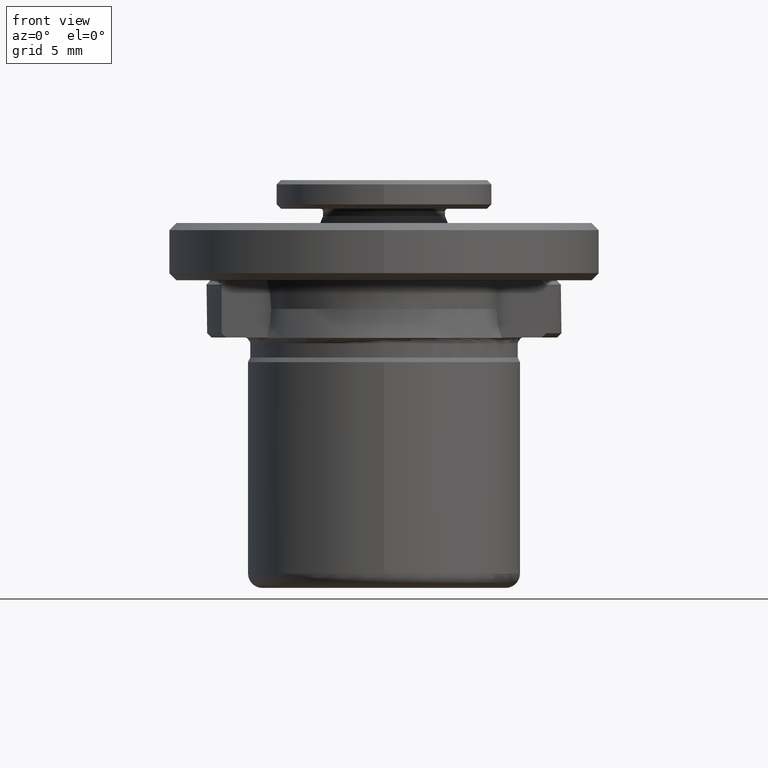
[diagram: clean part render]
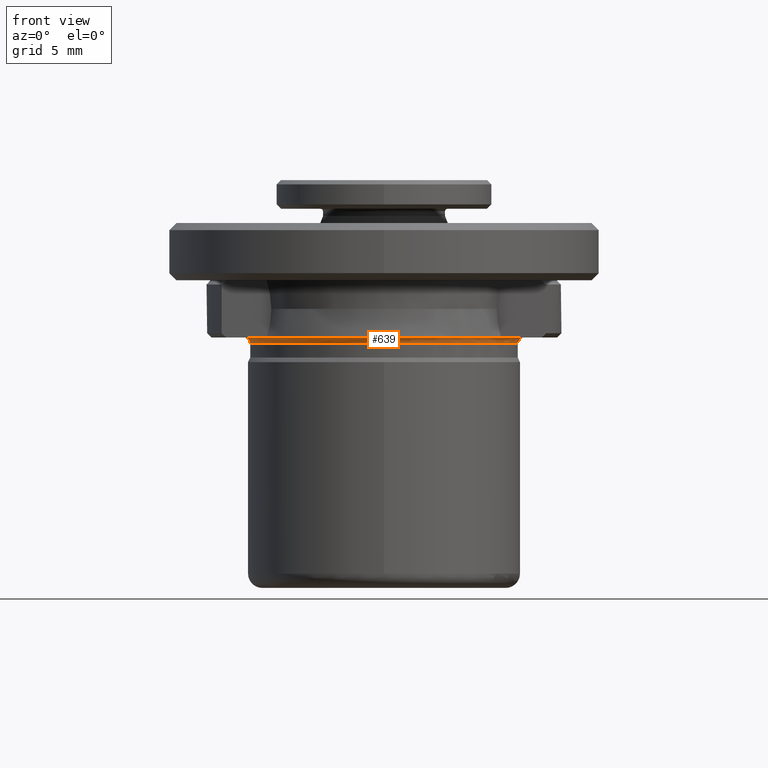
[diagram: same view with one face highlighted and labeled with its STEP entity id]
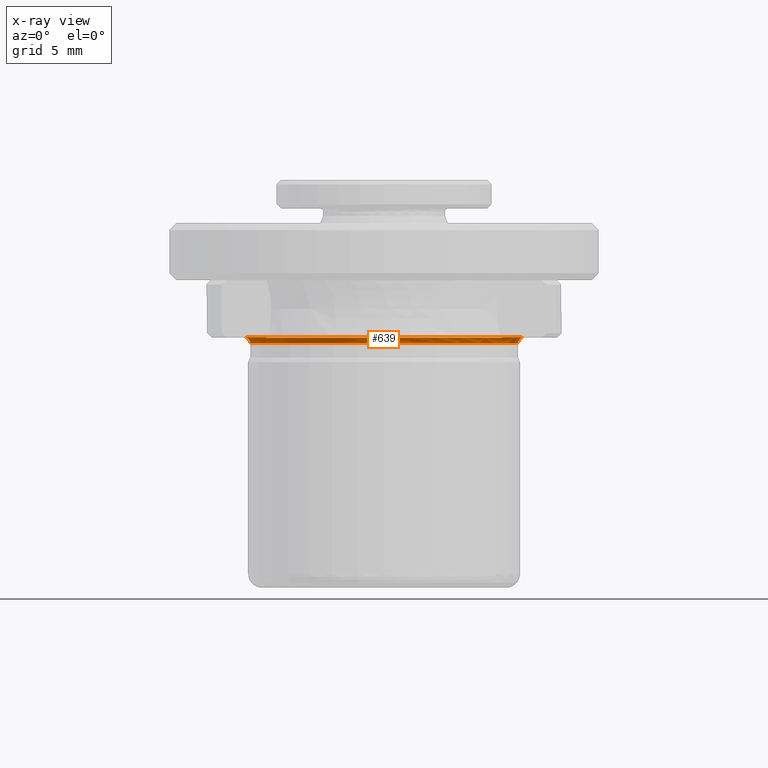
[diagram: x-ray of the same camera — body ghosted, the highlighted face saturated]
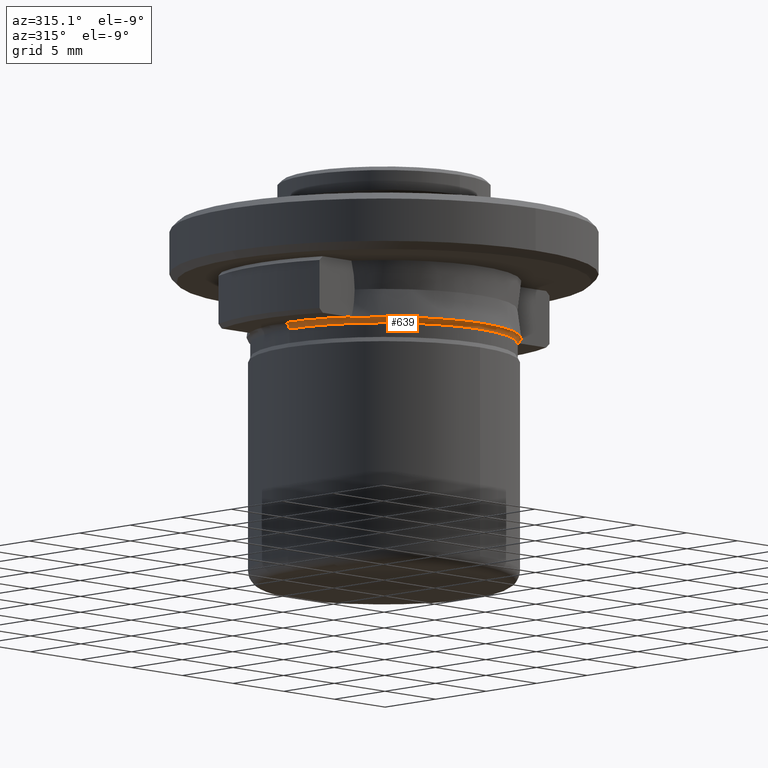
[diagram: same view with one face highlighted and labeled with its STEP entity id]
A machine part, front view. The second image highlights one B-rep face of the part: STEP entity #639.
The next image is the same camera in x-ray: the body ghosted, the highlighted face saturated — about 0% of this face is hidden behind the body in this view.
A second angle (auxiliary view) of the same face is appended — the face is thin or edge-on in the first view.
In plain terms, the highlighted toroidal blend (fillet) surface has major radius 9.75 mm and minor (blend) radius 0.4 mm.
Its self-contained STEP definition (entity closure, byte-faithful):
#5 = CARTESIAN_POINT ( 'NONE',  ( 9.350000000108330800, 0.0000000000000000000, 4.349999999879580400 ) ) ;
#7 = VERTEX_POINT ( 'NONE', #346 ) ;
#13 = AXIS2_PLACEMENT_3D ( 'NONE', #1073, #99, #1237 ) ;
#61 = DIRECTION ( 'NONE',  ( -1.000000000000000000, 0.0000000000000000000, 0.0000000000000000000 ) ) ;
#82 = ORIENTED_EDGE ( 'NONE', *, *, #463, .F. ) ;
#99 = DIRECTION ( 'NONE',  ( -0.0000000000000000000, 1.231706655199673800E-016, -1.000000000000000000 ) ) ;
#133 = CIRCLE ( 'NONE', #1562, 9.750000000796468700 ) ;
#141 = CIRCLE ( 'NONE', #648, 9.350000000108330800 ) ;
#144 = CARTESIAN_POINT ( 'NONE',  ( 8.259008783759654200, -5.000000000000000000, 4.741517755018747900 ) ) ;
#189 = VERTEX_POINT ( 'NONE', #746 ) ;
#191 = ORIENTED_EDGE ( 'NONE', *, *, #2091, .F. ) ;
#195 = AXIS2_PLACEMENT_3D ( 'NONE', #1210, #1035, #1369 ) ;
#210 = CARTESIAN_POINT ( 'NONE',  ( 8.205382973924143300, -5.000000000000000900, 4.724235040594156700 ) ) ;
#232 = EDGE_CURVE ( 'NONE', #189, #1373, #1013, .T. ) ;
#346 = CARTESIAN_POINT ( 'NONE',  ( -9.350000000108330800, 1.145044757216041900E-015, 4.349999999879580400 ) ) ;
#369 = VERTEX_POINT ( 'NONE', #5 ) ;
#463 = EDGE_CURVE ( 'NONE', #1812, #369, #947, .T. ) ;
#469 = CARTESIAN_POINT ( 'NONE',  ( 9.750000000236514800, 0.0000000000000000000, 4.749999999889213100 ) ) ;
#575 = DIRECTION ( 'NONE',  ( 1.224646799147353200E-016, 1.000000000000000000, 0.0000000000000000000 ) ) ;
#581 = CARTESIAN_POINT ( 'NONE',  ( -9.750000000561367800, 1.194030629237417500E-015, 4.749999999889213100 ) ) ;
#587 = ORIENTED_EDGE ( 'NONE', *, *, #232, .F. ) ;
#593 = CARTESIAN_POINT ( 'NONE',  ( 0.0000000000000000000, 0.0000000000000000000, 4.749999999889213100 ) ) ;
#595 = ORIENTED_EDGE ( 'NONE', *, *, #1206, .F. ) ;
#610 = VERTEX_POINT ( 'NONE', #210 ) ;
#639 = ADVANCED_FACE ( 'NONE', ( #970 ), #1350, .F. ) ;
#648 = AXIS2_PLACEMENT_3D ( 'NONE', #1984, #1027, #61 ) ;
#650 = ORIENTED_EDGE ( 'NONE', *, *, #1083, .T. ) ;
#663 = AXIS2_PLACEMENT_3D ( 'NONE', #992, #2070, #1573 ) ;
#746 = CARTESIAN_POINT ( 'NONE',  ( -8.370334521172623000, -4.999999999999999100, 4.749999999889213100 ) ) ;
#751 = B_SPLINE_CURVE_WITH_KNOTS ( 'NONE', 3,
 ( #1753, #2073, #144, #1280 ),
 .UNSPECIFIED., .F., .F.,
 ( 4, 4 ),
 ( 0.0000000000000000000, 0.0001669516248584918300 ),
 .UNSPECIFIED. ) ;
#770 = DIRECTION ( 'NONE',  ( 1.000000000000000000, 0.0000000000000000000, 0.0000000000000000000 ) ) ;
#863 = ORIENTED_EDGE ( 'NONE', *, *, #1026, .T. ) ;
#873 = ORIENTED_EDGE ( 'NONE', *, *, #1099, .T. ) ;
#900 = DIRECTION ( 'NONE',  ( -0.0000000000000000000, 0.0000000000000000000, -1.000000000000000000 ) ) ;
#940 = VERTEX_POINT ( 'NONE', #2078 ) ;
#947 = CIRCLE ( 'NONE', #663, 0.4000000002154814300 ) ;
#970 = FACE_OUTER_BOUND ( 'NONE', #2025, .T. ) ;
#992 = CARTESIAN_POINT ( 'NONE',  ( 9.750000000326270600, 0.0000000000000000000, 4.349999999673730900 ) ) ;
#1013 = B_SPLINE_CURVE_WITH_KNOTS ( 'NONE', 3,
 ( #1341, #1489, #1163, #1144 ),
 .UNSPECIFIED., .F., .F.,
 ( 4, 4 ),
 ( 0.0000000000000000000, 0.0001669516248611322700 ),
 .UNSPECIFIED. ) ;
#1026 = EDGE_CURVE ( 'NONE', #189, #2044, #133, .T. ) ;
#1027 = DIRECTION ( 'NONE',  ( 0.0000000000000000000, -0.0000000000000000000, -1.000000000000000000 ) ) ;
#1035 = DIRECTION ( 'NONE',  ( -0.0000000000000000000, 0.0000000000000000000, 1.000000000000000000 ) ) ;
#1073 = CARTESIAN_POINT ( 'NONE',  ( -3.469446951953614200E-015, 1.203104456337644700E-010, 4.724235040888958200 ) ) ;
#1083 = EDGE_CURVE ( 'NONE', #2044, #7, #2076, .T. ) ;
#1099 = EDGE_CURVE ( 'NONE', #610, #1373, #1693, .T. ) ;
#1144 = CARTESIAN_POINT ( 'NONE',  ( -8.205382973924146800, -5.000000000000000900, 4.724235040594156700 ) ) ;
#1163 = CARTESIAN_POINT ( 'NONE',  ( -8.259008783760565500, -5.000000000000000000, 4.741517755019041900 ) ) ;
#1206 = EDGE_CURVE ( 'NONE', #369, #7, #141, .T. ) ;
#1210 = CARTESIAN_POINT ( 'NONE',  ( 0.0000000000000000000, 0.0000000000000000000, 4.349999999673730900 ) ) ;
#1237 = DIRECTION ( 'NONE',  ( 0.0000000000000000000, 1.000000000000000000, 9.026779162473682500E-017 ) ) ;
#1280 = CARTESIAN_POINT ( 'NONE',  ( 8.205382973924143300, -5.000000000000000900, 4.724235040594156700 ) ) ;
#1341 = CARTESIAN_POINT ( 'NONE',  ( -8.370334521172623000, -4.999999999999999100, 4.749999999889213100 ) ) ;
#1346 = ORIENTED_EDGE ( 'NONE', *, *, #1539, .T. ) ;
#1350 = TOROIDAL_SURFACE ( 'NONE', #195, 9.750000000326270600, 0.4000000002154814300 ) ;
#1369 = DIRECTION ( 'NONE',  ( 1.000000000000000000, 0.0000000000000000000, 0.0000000000000000000 ) ) ;
#1373 = VERTEX_POINT ( 'NONE', #1864 ) ;
#1448 = CIRCLE ( 'NONE', #1616, 9.750000000146760800 ) ;
#1489 = CARTESIAN_POINT ( 'NONE',  ( -8.314009200589170600, -5.000000001018015900, 4.749999998703816400 ) ) ;
#1539 = EDGE_CURVE ( 'NONE', #940, #610, #751, .T. ) ;
#1549 = CARTESIAN_POINT ( 'NONE',  ( -9.750000000326270600, 1.194030629208625900E-015, 4.349999999673730900 ) ) ;
#1562 = AXIS2_PLACEMENT_3D ( 'NONE', #1859, #900, #2015 ) ;
#1573 = DIRECTION ( 'NONE',  ( 0.0000000000000000000, 0.0000000000000000000, -1.000000000000000000 ) ) ;
#1616 = AXIS2_PLACEMENT_3D ( 'NONE', #593, #1735, #770 ) ;
#1693 = CIRCLE ( 'NONE', #13, 9.608762132945692300 ) ;
#1710 = DIRECTION ( 'NONE',  ( -1.000000000000000000, 1.224646799147352200E-016, 0.0000000000000000000 ) ) ;
#1735 = DIRECTION ( 'NONE',  ( -0.0000000000000000000, 0.0000000000000000000, 1.000000000000000000 ) ) ;
#1753 = CARTESIAN_POINT ( 'NONE',  ( 8.370334520555237700, -5.000000000000000000, 4.749999999889213100 ) ) ;
#1812 = VERTEX_POINT ( 'NONE', #469 ) ;
#1859 = CARTESIAN_POINT ( 'NONE',  ( 0.0000000000000000000, 0.0000000000000000000, 4.749999999889213100 ) ) ;
#1864 = CARTESIAN_POINT ( 'NONE',  ( -8.205382973924146800, -5.000000000000000900, 4.724235040594156700 ) ) ;
#1984 = CARTESIAN_POINT ( 'NONE',  ( 0.0000000000000000000, 0.0000000000000000000, 4.349999999879580400 ) ) ;
#1987 = AXIS2_PLACEMENT_3D ( 'NONE', #1549, #575, #1710 ) ;
#2015 = DIRECTION ( 'NONE',  ( 1.000000000000000000, 1.776356839400250500E-015, 0.0000000000000000000 ) ) ;
#2025 = EDGE_LOOP ( 'NONE', ( #863, #650, #595, #82, #191, #1346, #873, #587 ) ) ;
#2044 = VERTEX_POINT ( 'NONE', #581 ) ;
#2070 = DIRECTION ( 'NONE',  ( 0.0000000000000000000, -1.000000000000000000, 0.0000000000000000000 ) ) ;
#2073 = CARTESIAN_POINT ( 'NONE',  ( 8.314009200587245000, -5.000000001017176600, 4.749999998704311100 ) ) ;
#2076 = CIRCLE ( 'NONE', #1987, 0.4000000002154814300 ) ;
#2078 = CARTESIAN_POINT ( 'NONE',  ( 8.370334520555237700, -5.000000000000000000, 4.749999999889213100 ) ) ;
#2091 = EDGE_CURVE ( 'NONE', #940, #1812, #1448, .T. ) ;